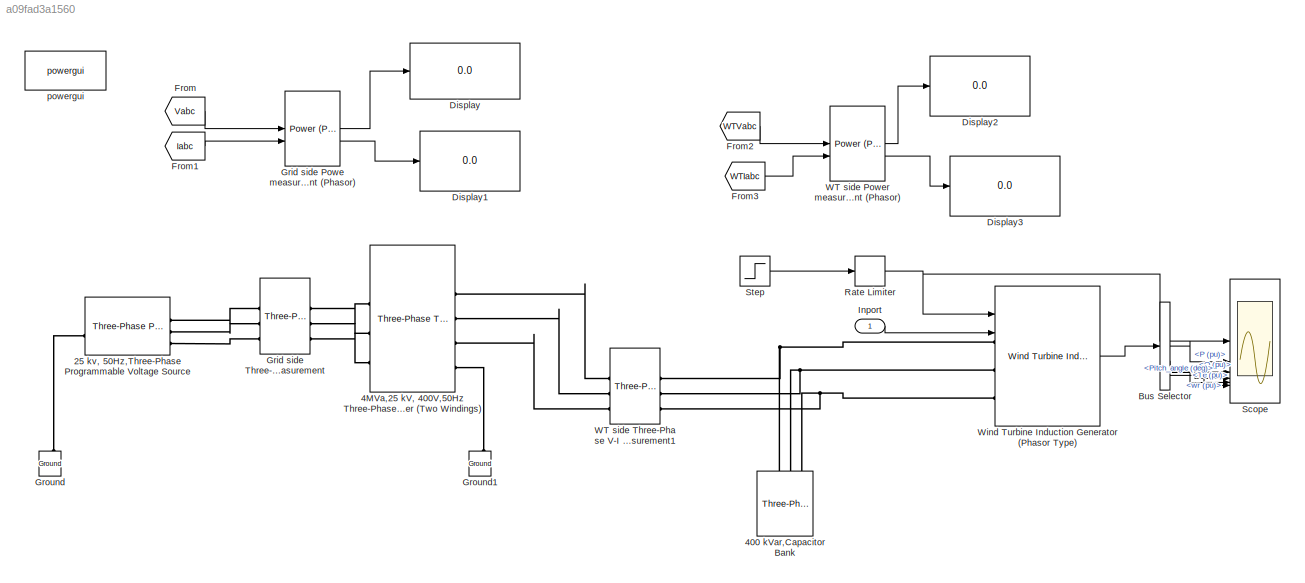
MODEL slx_a09fad3a1560
KIND model
CONFIG AbsTol = 1e-3
CONFIG EnableMultiTasking = off
CONFIG FixedStep = auto
CONFIG MaxStep = auto
CONFIG MinStep = auto
CONFIG RelTol = 1e-4
CONFIG SampleTimeConstraint = Unconstrained
CONFIG SolverName = ode23tb
CONFIG StartTime = 0.0
CONFIG StopTime = 10.0
BLOCK [Reference] 25 kv, 50Hz,Three-Phase Programmable Voltage Source  REF=spsThreePhaseProgrammableVoltageSourceLib/Three-Phase
Programmable
Voltage Source
  LibrarySourceBlock = sps_lib/Sources/Three-Phase\nProgrammable\nVoltage Source
  SourceBlock = spsThreePhaseProgrammableVoltageSourceLib/Three-Phase\nProgrammable\nVoltage Source
  SourceType = Three-Phase Programmable Voltage Source
BLOCK [Reference] 400 kVar,Capacitor Bank  REF=spsThreePhaseParallelRLCLoadLib/Three-Phase
Parallel RLC Load
  AttributesFormatString = \n
  LibrarySourceBlock = sps_lib/Passives/Three-Phase\nParallel RLC Load
  SourceBlock = spsThreePhaseParallelRLCLoadLib/Three-Phase\nParallel RLC Load
  SourceType = Three-Phase Parallel RLC Load
BLOCK [Reference] 4MVa,25 kV, 400V,50Hz Three-Phase Transformer (Two Windings)  REF=spsThreePhaseTransformerTwoWindingsLib/Three-Phase
Transformer
(Two Windings)
  LibrarySourceBlock = sps_lib/Power Grid Elements/Three-Phase\nTransformer\n(Two Windings)
  SourceBlock = spsThreePhaseTransformerTwoWindingsLib/Three-Phase\nTransformer\n(Two Windings)
  SourceType = Three-Phase Transformer (Two Windings)
BLOCK [BusSelector] Bus Selector
  OutputSignals = P (pu),Q (pu),wr (pu),Te (pu),Pitch_angle (deg)
BLOCK [Display] Display
  Decimation = 1
BLOCK [Display] Display1
  Decimation = 1
BLOCK [Display] Display2
  Decimation = 1
BLOCK [Display] Display3
  Decimation = 1
BLOCK [From] From
  GotoTag = Vabc
  TagVisibility = global
BLOCK [From] From1
  GotoTag = Iabc
  TagVisibility = global
BLOCK [From] From2
  GotoTag = WTVabc
  TagVisibility = global
BLOCK [From] From3
  GotoTag = WTIabc
  TagVisibility = global
BLOCK [Reference] Grid side Powe measurement (Phasor)  REF=spsPowerPhasorLib/Power
(Phasor)
  LibrarySourceBlock = sps_lib/Sensors and Measurements/Power\n(Phasor)
  SourceBlock = spsPowerPhasorLib/Power\n(Phasor)
  SourceType = Power (Phasor)
BLOCK [Reference] Grid side Three-Phase V-I Measurement  REF=spsThreePhaseVIMeasurementLib/Three-Phase
V-I Measurement
  LibrarySourceBlock = sps_lib/Sensors and Measurements/Three-Phase\nV-I Measurement
  SourceBlock = spsThreePhaseVIMeasurementLib/Three-Phase\nV-I Measurement
  SourceType = Three-Phase VI Measurement
BLOCK [Reference] Ground  REF=spsGroundLib/Ground
  LibrarySourceBlock = sps_lib/Utilities/Ground
  NameLocation = right
  SourceBlock = spsGroundLib/Ground
  SourceType = Ground
BLOCK [Reference] Ground1  REF=spsGroundLib/Ground
  LibrarySourceBlock = sps_lib/Utilities/Ground
  NameLocation = right
  SourceBlock = spsGroundLib/Ground
  SourceType = Ground
BLOCK [Inport] Inport
BLOCK [RateLimiter] Rate Limiter
BLOCK [Scope] Scope
  Floating = off
  NumInputPorts = 6
  ScopeSpecificationString = Simulink.scopes.TimeScopeBlockCfg('CurrentConfiguration', extmgr.ConfigurationSet(extmgr.Configuration('Core','General UI',true),extmgr.Configuration('Core','Source UI',true),extmgr.Configuration('Sources','WiredSimulink',true),extmgr.Configuration('Visuals','Time Domain',true,'SerializedDisplays',{struct('MinYLimReal','7.375','MaxYLimReal','13.625','YLabelReal','','MinYLimMag','7.375','MaxYLimMag...<+5286ch>
BLOCK [Step] Step
  After = 20
  Before = 8
  SampleTime = 0
  Time = 5
BLOCK [Reference] WT side Power measurement (Phasor)  REF=spsPowerPhasorLib/Power
(Phasor)
  LibrarySourceBlock = sps_lib/Sensors and Measurements/Power\n(Phasor)
  SourceBlock = spsPowerPhasorLib/Power\n(Phasor)
  SourceType = Power (Phasor)
BLOCK [Reference] WT side Three-Phase V-I Measurement1  REF=spsThreePhaseVIMeasurementLib/Three-Phase
V-I Measurement
  LibrarySourceBlock = sps_lib/Sensors and Measurements/Three-Phase\nV-I Measurement
  SourceBlock = spsThreePhaseVIMeasurementLib/Three-Phase\nV-I Measurement
  SourceType = Three-Phase VI Measurement
BLOCK [Reference] Wind Turbine Induction Generator (Phasor Type)  REF=spsWindTurbineInductionGeneratorPhasorTypeLib/Wind Turbine
Induction Generator
(Phasor Type)
  LibrarySourceBlock = sps_lib/Electrical Machines/Wind Turbine\nInduction Generator\n(Phasor Type)
  SourceBlock = spsWindTurbineInductionGeneratorPhasorTypeLib/Wind Turbine\nInduction Generator\n(Phasor Type)
  SourceType = Wind Turbine Induction Generator (Phasor Type)
BLOCK [Reference] powergui  REF=sps_lib/powergui
  LibrarySourceBlock = sps_lib/powergui
  Priority = 1
  SourceBlock = sps_lib/powergui
  SourceType = PSB option menu block
LINE Bus Selector:1 -> Scope:2
LINE Bus Selector:2 -> Scope:3
LINE Bus Selector:3 -> Scope:4
LINE Bus Selector:4 -> Scope:5
LINE Bus Selector:5 -> Scope:6
LINE From1:1 -> Grid side Powe measurement (Phasor):2
LINE From2:1 -> WT side Power measurement (Phasor):1
LINE From3:1 -> WT side Power measurement (Phasor):2
LINE From:1 -> Grid side Powe measurement (Phasor):1
LINE Grid side Powe measurement (Phasor):1 -> Display:1
LINE Grid side Powe measurement (Phasor):2 -> Display1:1
LINE Inport:1 -> Wind Turbine Induction Generator (Phasor Type):2
NET Rate Limiter:1 -> Scope:1, Wind Turbine Induction Generator (Phasor Type):1
LINE Step:1 -> Rate Limiter:1
LINE WT side Power measurement (Phasor):1 -> Display2:1
LINE WT side Power measurement (Phasor):2 -> Display3:1
LINE Wind Turbine Induction Generator (Phasor Type):1 -> Bus Selector:1
PLINE 25 kv, 50Hz,Three-Phase Programmable Voltage Source:LConn1 -- Ground:LConn1
PLINE 25 kv, 50Hz,Three-Phase Programmable Voltage Source:RConn1 -- Grid side Three-Phase V-I Measurement:LConn1
PLINE 25 kv, 50Hz,Three-Phase Programmable Voltage Source:RConn2 -- Grid side Three-Phase V-I Measurement:LConn2
PLINE 25 kv, 50Hz,Three-Phase Programmable Voltage Source:RConn3 -- Grid side Three-Phase V-I Measurement:LConn3
PNET net1: 400 kVar,Capacitor Bank:LConn1 -- WT side Three-Phase V-I Measurement1:RConn1 -- Wind Turbine Induction Generator (Phasor Type):LConn1
PNET net2: 400 kVar,Capacitor Bank:LConn2 -- WT side Three-Phase V-I Measurement1:RConn2 -- Wind Turbine Induction Generator (Phasor Type):LConn2
PNET net3: 400 kVar,Capacitor Bank:LConn3 -- WT side Three-Phase V-I Measurement1:RConn3 -- Wind Turbine Induction Generator (Phasor Type):LConn3
PLINE 4MVa,25 kV, 400V,50Hz Three-Phase Transformer (Two Windings):LConn1 -- Grid side Three-Phase V-I Measurement:RConn1
PLINE 4MVa,25 kV, 400V,50Hz Three-Phase Transformer (Two Windings):LConn2 -- Grid side Three-Phase V-I Measurement:RConn2
PLINE 4MVa,25 kV, 400V,50Hz Three-Phase Transformer (Two Windings):LConn3 -- Grid side Three-Phase V-I Measurement:RConn3
PLINE 4MVa,25 kV, 400V,50Hz Three-Phase Transformer (Two Windings):RConn1 -- WT side Three-Phase V-I Measurement1:LConn1
PLINE 4MVa,25 kV, 400V,50Hz Three-Phase Transformer (Two Windings):RConn2 -- WT side Three-Phase V-I Measurement1:LConn2
PLINE 4MVa,25 kV, 400V,50Hz Three-Phase Transformer (Two Windings):RConn3 -- WT side Three-Phase V-I Measurement1:LConn3
PLINE 4MVa,25 kV, 400V,50Hz Three-Phase Transformer (Two Windings):RConn4 -- Ground1:LConn1
note: NET lines group one-source signal fan-out (src -> all destinations, sorted); 1:1 wires keep LINE; PNET lines group multi-terminal physical nets as a canonical sorted terminal list (undirected conserving connections); 2-terminal nets keep the pairwise PLINE form
